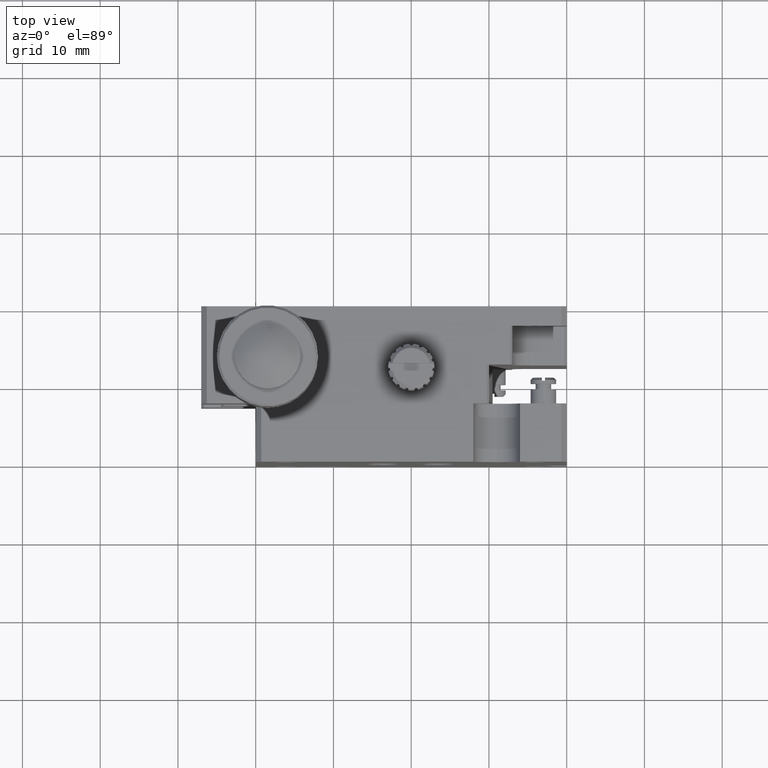
[diagram: clean part render]
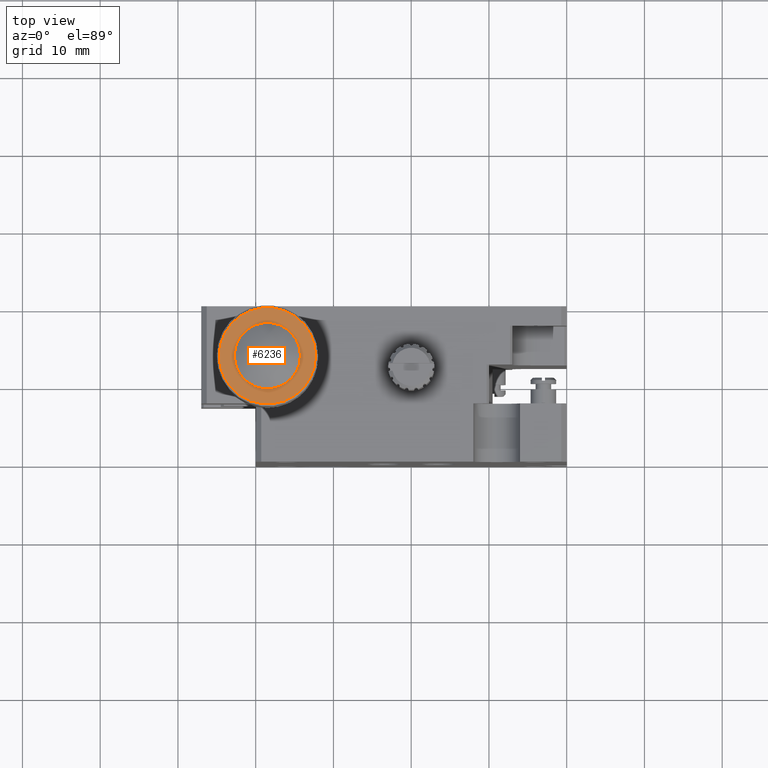
[diagram: same view with one face highlighted and labeled with its STEP entity id]
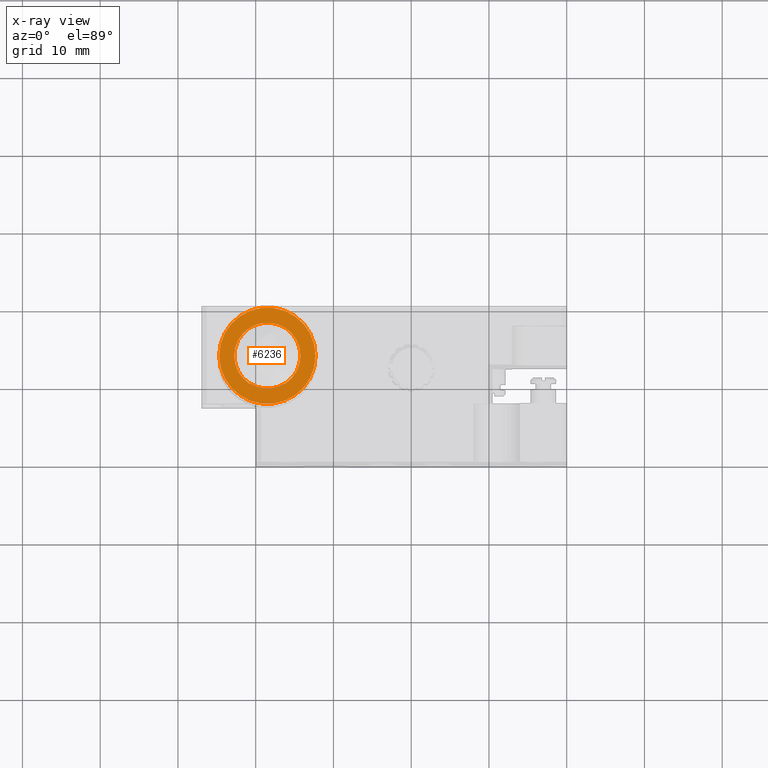
[diagram: x-ray of the same camera — body ghosted, the highlighted face saturated]
A machine part, top view. The second image highlights one B-rep face of the part: STEP entity #6236.
The next image is the same camera in x-ray: the body ghosted, the highlighted face saturated — about 0% of this face is hidden behind the body in this view.
In plain terms, the highlighted planar face has unit normal (0, 0, -1).
Its self-contained STEP definition (entity closure, byte-faithful):
#907 = AXIS2_PLACEMENT_3D ( 'NONE', #8179, #8198, #8181 ) ;
#957 = AXIS2_PLACEMENT_3D ( 'NONE', #3337, #3348, #3359 ) ;
#959 = AXIS2_PLACEMENT_3D ( 'NONE', #3394, #3374, #3392 ) ;
#968 = AXIS2_PLACEMENT_3D ( 'NONE', #3283, #3292, #3321 ) ;
#1896 = AXIS2_PLACEMENT_3D ( 'NONE', #8349, #8348, #8318 ) ;
#2011 = EDGE_LOOP ( 'NONE', ( #2561, #2497 ) ) ;
#2065 = EDGE_LOOP ( 'NONE', ( #2476, #2526 ) ) ;
#2476 = ORIENTED_EDGE ( 'NONE', *, *, #10236, .F. ) ;
#2497 = ORIENTED_EDGE ( 'NONE', *, *, #10230, .F. ) ;
#2526 = ORIENTED_EDGE ( 'NONE', *, *, #10210, .F. ) ;
#2561 = ORIENTED_EDGE ( 'NONE', *, *, #10188, .F. ) ;
#3283 = CARTESIAN_POINT ( 'NONE',  ( 1.500000000000000200, 13.00000000000000200, 35.50000000000000000 ) ) ;
#3292 = DIRECTION ( 'NONE',  ( -6.123233995736769700E-017, -0.0000000000000000000, 1.000000000000000000 ) ) ;
#3321 = DIRECTION ( 'NONE',  ( -1.000000000000000000, 0.0000000000000000000, 0.0000000000000000000 ) ) ;
#3337 = CARTESIAN_POINT ( 'NONE',  ( 1.500000000000000000, 13.00000000000000200, 35.49999999999045000 ) ) ;
#3348 = DIRECTION ( 'NONE',  ( 6.672013369124295600E-017, -4.451576239777333500E-033, -1.000000000000000000 ) ) ;
#3359 = DIRECTION ( 'NONE',  ( -1.000000000000000000, 0.0000000000000000000, 0.0000000000000000000 ) ) ;
#3374 = DIRECTION ( 'NONE',  ( -6.123233995736769700E-017, -0.0000000000000000000, 1.000000000000000000 ) ) ;
#3392 = DIRECTION ( 'NONE',  ( -1.000000000000000000, 0.0000000000000000000, 0.0000000000000000000 ) ) ;
#3394 = CARTESIAN_POINT ( 'NONE',  ( 1.500000000000000200, 13.00000000000000200, 35.50000000000000000 ) ) ;
#3487 = VERTEX_POINT ( 'NONE', #5476 ) ;
#3499 = VERTEX_POINT ( 'NONE', #5460 ) ;
#3510 = VERTEX_POINT ( 'NONE', #5467 ) ;
#3551 = VERTEX_POINT ( 'NONE', #4658 ) ;
#4658 = CARTESIAN_POINT ( 'NONE',  ( 5.750000000000000900, 13.00000000000000200, 35.50000000000000000 ) ) ;
#5460 = CARTESIAN_POINT ( 'NONE',  ( -4.699999999921601600, 13.00000000000000200, 35.49999999999045000 ) ) ;
#5467 = CARTESIAN_POINT ( 'NONE',  ( -2.750000000000000000, 13.00000000000000200, 35.50000000000000000 ) ) ;
#5476 = CARTESIAN_POINT ( 'NONE',  ( 7.699999999921601600, 13.00000000000000200, 35.49999999999045000 ) ) ;
#6236 = ADVANCED_FACE ( 'NONE', ( #9878, #9906 ), #8342, .F. ) ;
#8179 = CARTESIAN_POINT ( 'NONE',  ( 1.500000000000000000, 13.00000000000000200, 35.49999999999045000 ) ) ;
#8181 = DIRECTION ( 'NONE',  ( -1.000000000000000000, 0.0000000000000000000, 0.0000000000000000000 ) ) ;
#8198 = DIRECTION ( 'NONE',  ( 6.672013369124295600E-017, -4.451576239777333500E-033, -1.000000000000000000 ) ) ;
#8318 = DIRECTION ( 'NONE',  ( -1.000000000000000000, 0.0000000000000000000, -6.123233995736769700E-017 ) ) ;
#8342 = PLANE ( 'NONE',  #1896 ) ;
#8348 = DIRECTION ( 'NONE',  ( 6.123233995736769700E-017, 0.0000000000000000000, -1.000000000000000000 ) ) ;
#8349 = CARTESIAN_POINT ( 'NONE',  ( -2.750000000000000400, 13.00000000000000200, 35.50000000000000000 ) ) ;
#9240 = CIRCLE ( 'NONE', #907, 6.199999999921601600 ) ;
#9271 = CIRCLE ( 'NONE', #968, 4.250000000000000000 ) ;
#9328 = CIRCLE ( 'NONE', #957, 6.199999999921601600 ) ;
#9333 = CIRCLE ( 'NONE', #959, 4.250000000000000000 ) ;
#9878 = FACE_BOUND ( 'NONE', #2065, .T. ) ;
#9906 = FACE_OUTER_BOUND ( 'NONE', #2011, .T. ) ;
#10188 = EDGE_CURVE ( 'NONE', #3499, #3487, #9240, .T. ) ;
#10210 = EDGE_CURVE ( 'NONE', #3551, #3510, #9271, .T. ) ;
#10230 = EDGE_CURVE ( 'NONE', #3487, #3499, #9328, .T. ) ;
#10236 = EDGE_CURVE ( 'NONE', #3510, #3551, #9333, .T. ) ;